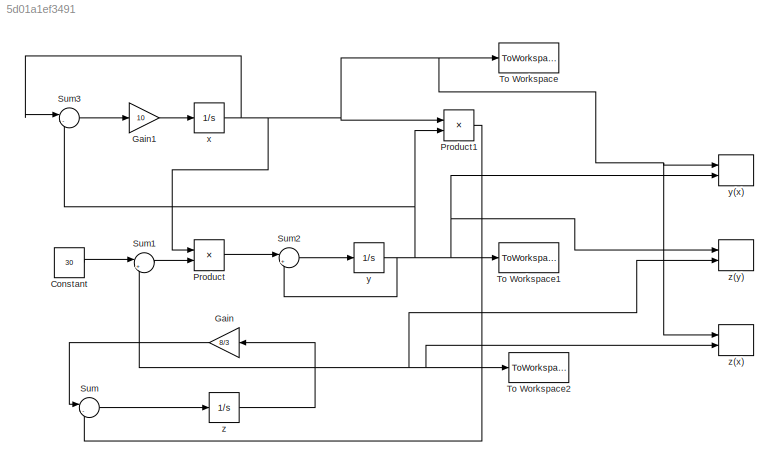
MODEL slx_5d01a1ef3491
KIND model
CONFIG AbsTol = auto
CONFIG EnableMultiTasking = off
CONFIG FixedStep = 0.001
CONFIG MaxStep = auto
CONFIG MinStep = auto
CONFIG RelTol = 1e-3
CONFIG SampleTimeConstraint = Unconstrained
CONFIG SolverName = FixedStepAuto
CONFIG StartTime = 0.0
CONFIG StopTime = 25
BLOCK [Constant] Constant
  Value = 30
BLOCK [Gain] Gain
  Gain = 8/3
BLOCK [Gain] Gain1
  Gain = 10
BLOCK [Product] Product
  Ports = [2, 1]
BLOCK [Product] Product1
  Ports = [2, 1]
BLOCK [Sum] Sum
  Inputs = |-+
  Ports = [2, 1]
BLOCK [Sum] Sum1
  Inputs = |+-
  Ports = [2, 1]
BLOCK [Sum] Sum2
  Inputs = |+-
  Ports = [2, 1]
BLOCK [Sum] Sum3
  Inputs = |-+
  Ports = [2, 1]
BLOCK [ToWorkspace] To Workspace
  FixptAsFi = on
  MaxDataPoints = inf
  Ports = [1]
  SampleTime = -1
  SaveFormat = Timeseries
  VariableName = x
BLOCK [ToWorkspace] To Workspace1
  FixptAsFi = on
  MaxDataPoints = inf
  Ports = [1]
  SampleTime = -1
  SaveFormat = Timeseries
  VariableName = y
BLOCK [ToWorkspace] To Workspace2
  FixptAsFi = on
  MaxDataPoints = inf
  Ports = [1]
  SampleTime = -1
  SaveFormat = Timeseries
  VariableName = z
BLOCK [Integrator] x
  InitialCondition = 1
  Ports = [1, 1]
BLOCK [Integrator] y
  InitialCondition = 1
  Ports = [1, 1]
BLOCK [Record] y(x)
  CompatibilityTag = XY
  FileSettingsInternal = {"entries":[{"content":{"excelSettings":{"content":{},"type":"Streamout.ExcelSettings"}},"type":"Streamout.FileSettingStorage","uuid":"ef66f5b4-9747-4179-82e2-631585743150"}],"packageUris":["http://schema.mathworks.com/mf0/streamout_blocks/R2020a"],"version":"1.0"}
  Layout = [1 1]
  Ports = [2]
  SignalsInternal = {"entries":[{"content":{"signals":[{"content":{"blockPath":["untitled1/y(x)"],"channel":[],"dimensions":[1],"domain":"untitled1/y(x)","lineColor":"#77ac30","plots":[],"port":1,"sid":[""],"signalID":678,"signalName":"x"},"type":"RecordBlkView.Signal","uuid":"84917a2a-bbe2-48f7-bd10-169f3f3ae82a"},{"content":{"blockPath":["untitled1/y(x)"],"channel":[],"dimensions":[1],"domain":"untitled1/y(x)","lin...<+335ch>
  VisualizationBindings = {"xyplotplugin":{"info":[{"series":[],"subplotID":1}]}}
BLOCK [Integrator] z
  InitialCondition = 1
  Ports = [1, 1]
BLOCK [Record] z(x)
  CompatibilityTag = XY
  FileSettingsInternal = {"entries":[{"content":{"excelSettings":{"content":{},"type":"Streamout.ExcelSettings"}},"type":"Streamout.FileSettingStorage","uuid":"3a2009f5-ad20-4802-abaf-2a6bdb6587af"}],"packageUris":["http://schema.mathworks.com/mf0/streamout_blocks/R2020a"],"version":"1.0"}
  Layout = [1 1]
  Ports = [2]
  SignalsInternal = {"entries":[{"content":{"signals":[{"content":{"blockPath":["untitled1/z(x)"],"channel":[],"dimensions":[1],"domain":"untitled1/z(x)","lineColor":"#a2142f","plots":[],"port":1,"sid":[""],"signalID":686,"signalName":"x"},"type":"RecordBlkView.Signal","uuid":"4cb3b1a7-ae2e-49f6-b35d-81cf5174aa31"},{"content":{"blockPath":["untitled1/z(x)"],"channel":[],"dimensions":[1],"domain":"untitled1/z(x)","lin...<+335ch>
  VisualizationBindings = {"xyplotplugin":{"info":[{"series":[],"subplotID":1}]}}
BLOCK [Record] z(y)
  CompatibilityTag = XY
  FileSettingsInternal = {"entries":[{"content":{"excelSettings":{"content":{},"type":"Streamout.ExcelSettings"}},"type":"Streamout.FileSettingStorage","uuid":"f86f402a-50ec-4cfe-8e74-a88101df4387"}],"packageUris":["http://schema.mathworks.com/mf0/streamout_blocks/R2020a"],"version":"1.0"}
  Layout = [1 1]
  Ports = [2]
  SignalsInternal = {"entries":[{"content":{"signals":[{"content":{"blockPath":["untitled1/z(y)"],"channel":[],"dimensions":[1],"domain":"untitled1/z(y)","lineColor":"#ff6929","plots":[],"port":1,"sid":[""],"signalID":694,"signalName":"y"},"type":"RecordBlkView.Signal","uuid":"0b5130b6-c72f-4a90-87ea-a7eeac464065"},{"content":{"blockPath":["untitled1/z(y)"],"channel":[],"dimensions":[1],"domain":"untitled1/z(y)","lin...<+335ch>
  VisualizationBindings = {"xyplotplugin":{"info":[{"series":[],"subplotID":1}]}}
LINE Constant:1 -> Sum1:1
LINE Gain1:1 -> x:1
LINE Gain:1 -> Sum:1
LINE Product1:1 -> Sum:2
LINE Product:1 -> Sum2:1
LINE Sum1:1 -> Product:2
LINE Sum2:1 -> y:1
LINE Sum3:1 -> Gain1:1
LINE Sum:1 -> z:1
NET x:1 -> Product1:1, Product:1, Sum3:1, To Workspace:1, y(x):1, z(x):1
NET y:1 -> Product1:2, Sum2:2, Sum3:2, To Workspace1:1, y(x):2, z(y):1
NET z:1 -> Gain:1, Sum1:2, To Workspace2:1, z(x):2, z(y):2
note: NET lines group one-source signal fan-out (src -> all destinations, sorted); 1:1 wires keep LINE
